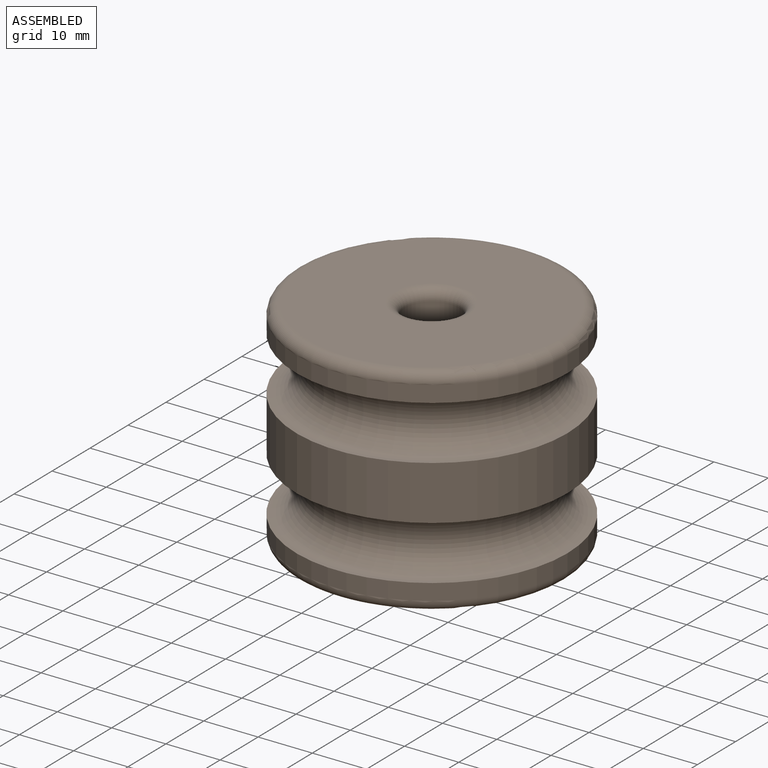
[diagram: assembled view]
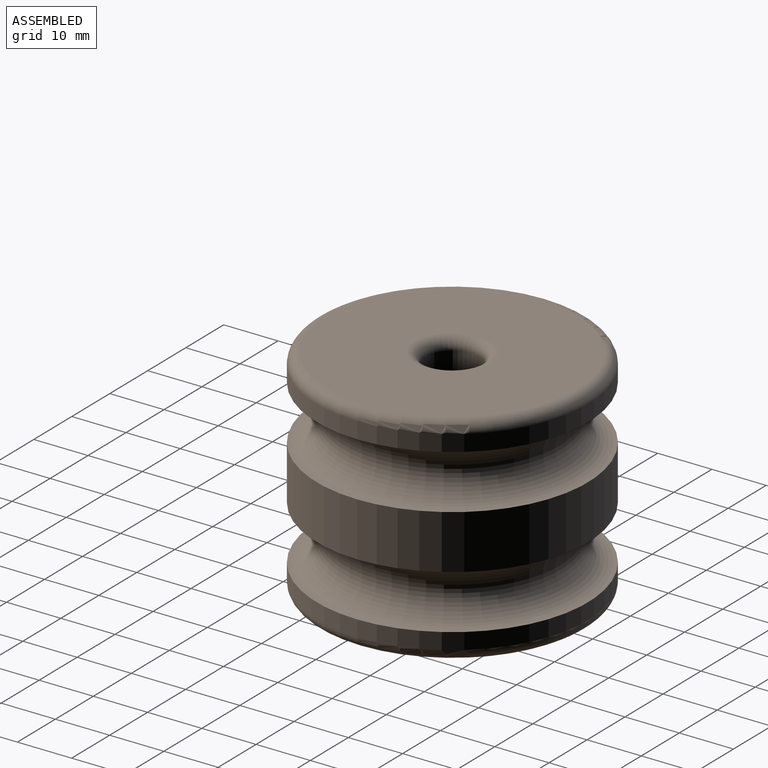
[diagram: assembled view, second angle]
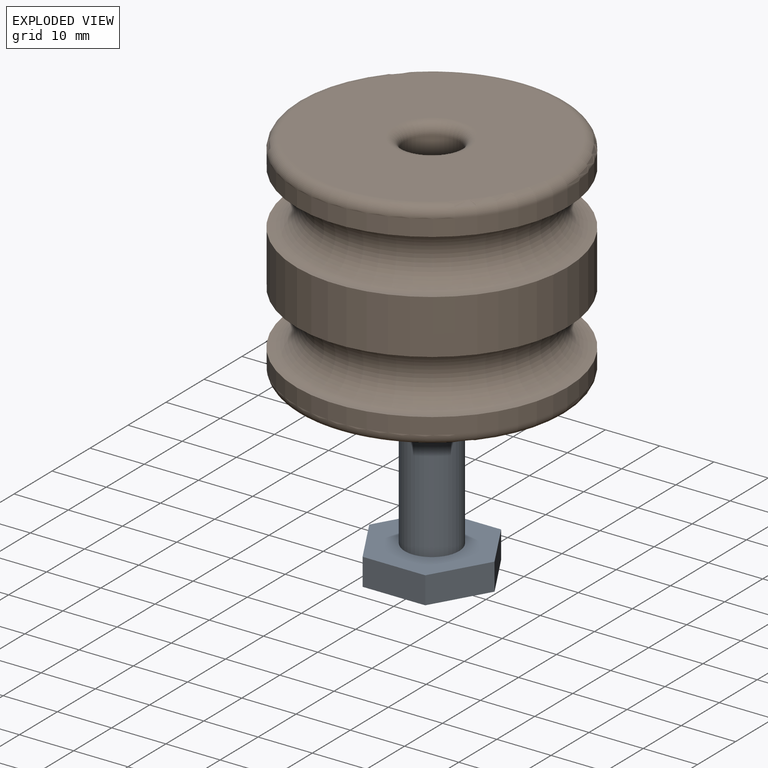
[diagram: exploded view]
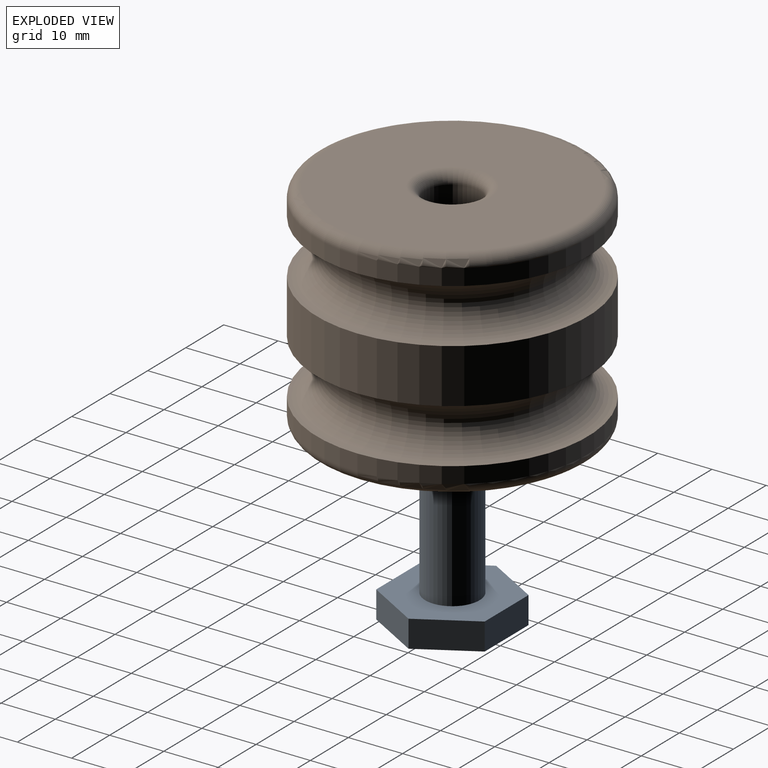
[diagram: exploded view, second angle]
ASSEMBLY  parts=2 mates=2
PART A: 10 faces, bbox 23.1x20x30 mm
  f0: cylinder r=5mm len=25mm, axis (0,0,-1), area 785.4mm2, adj f1,f8
  f1: plane 10x10mm, normal (0,0,1), area 78.5mm2, adj f0
  f2: plane 10x5.77mm, normal (-0.87,0.5,0), area 57.7mm2, adj f3,f7,f8,f9
  f3: plane 10x5.77mm, normal (-0.87,-0.5,0), area 57.7mm2, adj f2,f4,f8,f9
  f4: plane 11.55x5mm, normal (0,-1,0), area 57.7mm2, adj f3,f5,f8,f9
  f5: plane 10x5.77mm, normal (0.87,-0.5,0), area 57.7mm2, adj f4,f6,f8,f9
  f6: plane 10x5.77mm, normal (0.87,0.5,0), area 57.7mm2, adj f5,f7,f8,f9
  f7: plane 11.55x5mm, normal (0,1,0), area 57.7mm2, adj f2,f6,f8,f9
  f8: plane 23.09x20mm, normal (0,0,1), area 267.9mm2, adj f0,f2,f3,f4,f5,f6,f7
  f9: plane 23.09x20mm, normal (0,0,-1), area 346.4mm2, adj f2,f3,f4,f5,f6,f7
PART B: 17 faces, bbox 40x61.8x61.8 mm
  f0: torus R=25mm, axis (-1,0,0), area 2153.2mm2, adj f1,f11
  f1: cylinder r=25mm len=50mm, axis (-1,0,0), area 1570.8mm2, adj f0,f2
  f2: torus R=25mm, axis (-1,0,0), area 2153.2mm2, adj f1,f3
  f3: cylinder r=25mm len=50mm, axis (-1,0,0), area 471.2mm2, adj f2,f4
  f4: torus R=23mm, axis (-1,0,0), area 479.1mm2, adj f3,f5
  f5: plane 46x46mm, normal (-1,0,0), area 1508mm2, adj f4,f6
  f6: torus R=7mm, axis (-1,0,0), area 113mm2, adj f5,f7
  f7: cylinder r=5mm len=36mm, axis (-1,0,0), area 1131mm2, adj f6,f8
  f8: torus R=7mm, axis (-1,0,0), area 113mm2, adj f7,f9
  f9: plane 46x46mm, normal (1,0,0), area 1508mm2, adj f8,f10
  f10: torus R=23mm, axis (-1,0,0), area 479.1mm2, adj f9,f11
  f11: cylinder r=25mm len=50mm, axis (-1,0,0), area 471.2mm2, adj f0,f10
  f12: torus R=8.09mm, axis (-1,0,0), area 399.1mm2
  f13: torus R=14.1mm, axis (-1,0,0), area 695.8mm2
  f14: torus R=12.51mm, axis (-1,0,0), area 617.2mm2
  f15: torus R=8.09mm, axis (-1,0,0), area 399.1mm2
  f16: torus R=12.51mm, axis (-1,0,0), area 617.2mm2
PLACE A t=(-20.54,10.81,-57.6)mm
PLACE B rot(axis=(0.71,0,0.71),180deg) t=(-20.54,10.81,-32.6)mm fixed
MATE fastened B.f0 <-> A.f0  axis (0,0,-1) through (-20.54,10.81,-52.6)mm
MATE slider B.f0 <-> A.f0  axis (0,0,-1) through (-20.54,10.81,-50.6)mm
